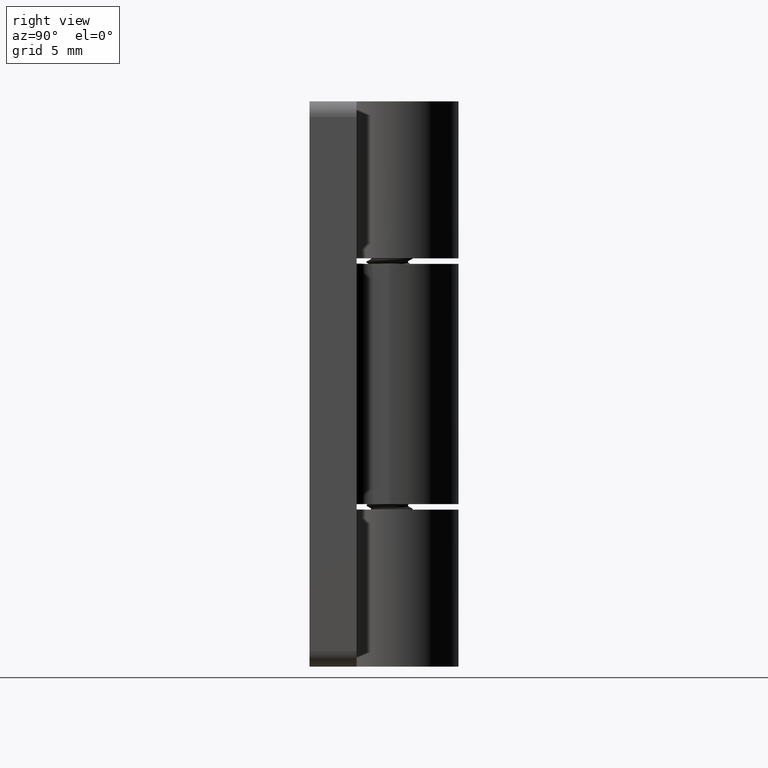
[diagram: clean part render]
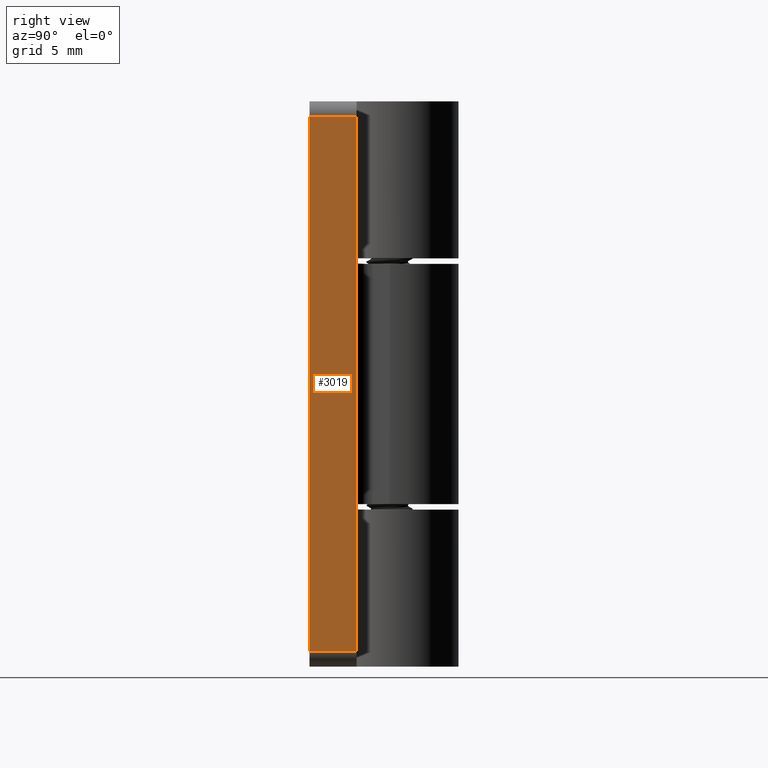
[diagram: same view with one face highlighted and labeled with its STEP entity id]
A machine part, right view. The second image highlights one B-rep face of the part: STEP entity #3019.
In plain terms, the highlighted planar face has unit normal (1, 0, 0).
Its self-contained STEP definition (entity closure, byte-faithful):
#406=PLANE('',#3203);
#515=FACE_OUTER_BOUND('',#662,.T.);
#662=EDGE_LOOP('',(#2844,#2845,#2846,#2847));
#783=LINE('',#33437,#939);
#787=LINE('',#33446,#943);
#795=LINE('',#33469,#951);
#822=LINE('',#33571,#978);
#939=VECTOR('',#3580,3.);
#943=VECTOR('',#3588,34.);
#951=VECTOR('',#3606,3.);
#978=VECTOR('',#3717,34.);
#1402=VERTEX_POINT('',#33430);
#1405=VERTEX_POINT('',#33435);
#1408=VERTEX_POINT('',#33445);
#1417=VERTEX_POINT('',#33465);
#1861=EDGE_CURVE('',#1405,#1402,#783,.T.);
#1865=EDGE_CURVE('',#1408,#1402,#787,.T.);
#1877=EDGE_CURVE('',#1408,#1417,#795,.T.);
#1924=EDGE_CURVE('',#1417,#1405,#822,.T.);
#2844=ORIENTED_EDGE('',*,*,#1861,.F.);
#2845=ORIENTED_EDGE('',*,*,#1924,.F.);
#2846=ORIENTED_EDGE('',*,*,#1877,.F.);
#2847=ORIENTED_EDGE('',*,*,#1865,.T.);
#3019=ADVANCED_FACE('',(#515),#406,.T.);
#3203=AXIS2_PLACEMENT_3D('',#33570,#3715,#3716);
#3580=DIRECTION('',(6.12323399573677E-17,0.,1.));
#3588=DIRECTION('',(0.,1.,0.));
#3606=DIRECTION('',(-6.12323399573677E-17,0.,-1.));
#3715=DIRECTION('center_axis',(-1.,0.,6.12323399573677E-17));
#3716=DIRECTION('ref_axis',(0.,0.,1.));
#3717=DIRECTION('',(0.,1.,0.));
#33430=CARTESIAN_POINT('',(30.9262510638286,17.,3.));
#33435=CARTESIAN_POINT('',(30.9262510638286,17.,0.));
#33437=CARTESIAN_POINT('',(30.9262510638286,17.,2.375));
#33445=CARTESIAN_POINT('',(30.9262510638286,-17.,3.));
#33446=CARTESIAN_POINT('',(30.9262510638286,0.,3.));
#33465=CARTESIAN_POINT('',(30.9262510638286,-17.,0.));
#33469=CARTESIAN_POINT('',(30.9262510638286,-17.,2.375));
#33570=CARTESIAN_POINT('Origin',(30.9262510638286,0.,0.));
#33571=CARTESIAN_POINT('',(30.9262510638286,0.,0.));